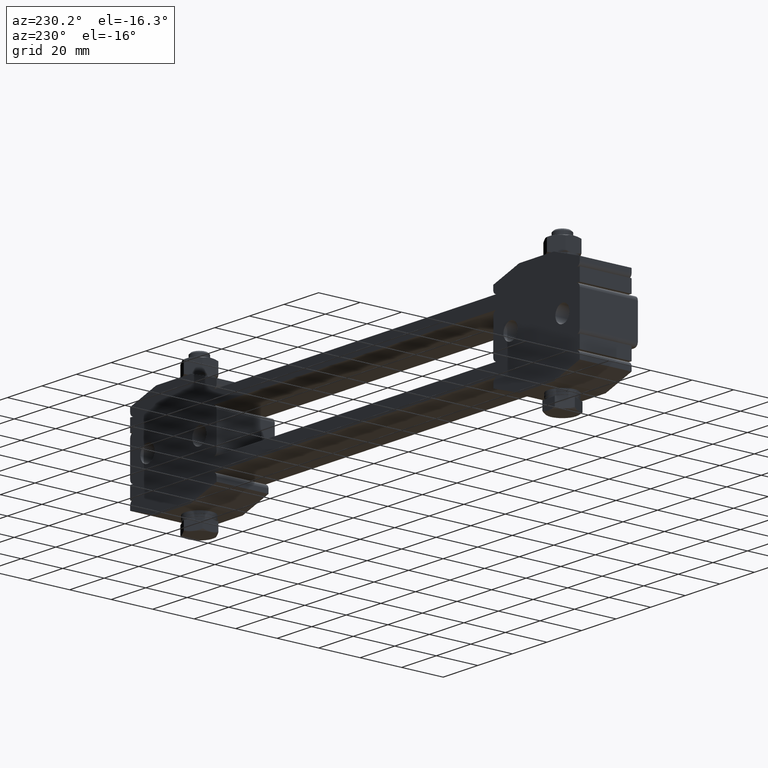
[diagram: clean part render]
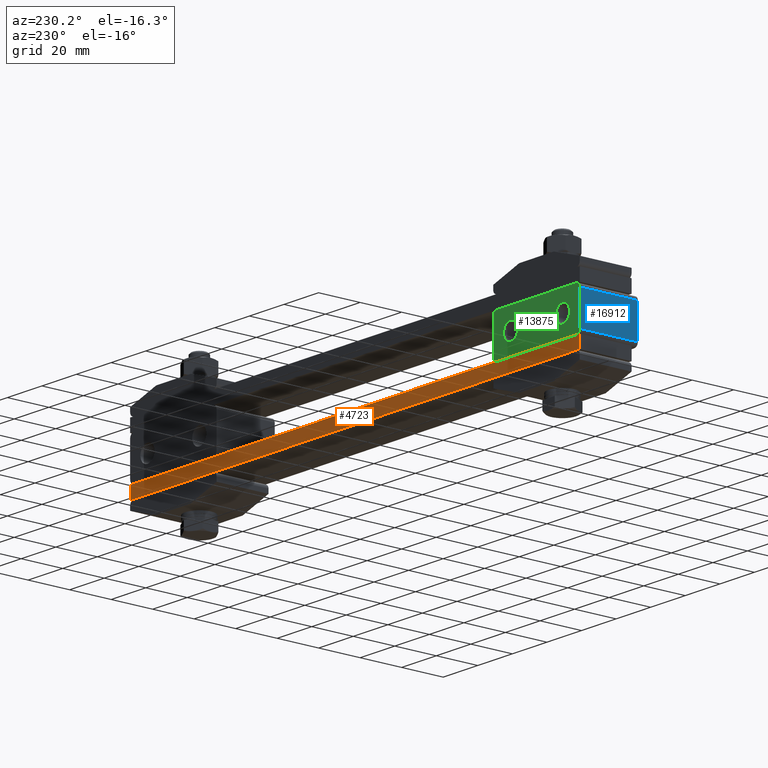
[diagram: same view with three faces highlighted in distinct colors, each labeled with its STEP entity id]
A machine part, auxiliary view with three faces highlighted in distinct colors.
Their STEP definitions:

[orange] entity #4723 — the highlighted planar face has unit normal (-0, -1, 0).
#538 = VECTOR ( 'NONE', #7116, 1000.000000000000000 ) ;
#637 = VERTEX_POINT ( 'NONE', #16670 ) ;
#789 = ORIENTED_EDGE ( 'NONE', *, *, #10513, .T. ) ;
#843 = ORIENTED_EDGE ( 'NONE', *, *, #4852, .F. ) ;
#1203 = VECTOR ( 'NONE', #12789, 1000.000000000000000 ) ;
#1219 = DIRECTION ( 'NONE',  ( -1.000000000000000000, 6.004812032227410000E-017, 0.0000000000000000000 ) ) ;
#1308 = CARTESIAN_POINT ( 'NONE',  ( 130.0000000000000000, 12.50000000000000000, 6.000000000000000000 ) ) ;
#1892 = EDGE_CURVE ( 'NONE', #637, #6761, #4321, .T. ) ;
#2294 = FACE_OUTER_BOUND ( 'NONE', #5741, .T. ) ;
#2340 = DIRECTION ( 'NONE',  ( 0.0000000000000000000, 0.0000000000000000000, -1.000000000000000000 ) ) ;
#3088 = LINE ( 'NONE', #3976, #538 ) ;
#3811 = VECTOR ( 'NONE', #1219, 1000.000000000000000 ) ;
#3976 = CARTESIAN_POINT ( 'NONE',  ( -130.0000000000000000, 12.50000000000000000, 0.0000000000000000000 ) ) ;
#4321 = LINE ( 'NONE', #5496, #9936 ) ;
#4723 = ADVANCED_FACE ( 'NONE', ( #2294 ), #13874, .F. ) ;
#4823 = ORIENTED_EDGE ( 'NONE', *, *, #1892, .F. ) ;
#4852 = EDGE_CURVE ( 'NONE', #10439, #637, #10489, .T. ) ;
#5496 = CARTESIAN_POINT ( 'NONE',  ( -130.0000000000000000, 12.50000000000000000, 6.000000000000000000 ) ) ;
#5679 = DIRECTION ( 'NONE',  ( -6.004812032227410000E-017, -1.000000000000000000, 0.0000000000000000000 ) ) ;
#5741 = EDGE_LOOP ( 'NONE', ( #789, #4823, #843, #10390 ) ) ;
#6101 = CARTESIAN_POINT ( 'NONE',  ( -130.0000000000000000, 12.50000000000000000, 6.000000000000000000 ) ) ;
#6761 = VERTEX_POINT ( 'NONE', #19327 ) ;
#7116 = DIRECTION ( 'NONE',  ( -1.000000000000000000, 6.004812032227410000E-017, 0.0000000000000000000 ) ) ;
#7349 = CARTESIAN_POINT ( 'NONE',  ( 130.0000000000000000, 12.50000000000000000, 0.0000000000000000000 ) ) ;
#8901 = CARTESIAN_POINT ( 'NONE',  ( -130.0000000000000000, 12.50000000000000000, 6.000000000000000000 ) ) ;
#9936 = VECTOR ( 'NONE', #2340, 1000.000000000000000 ) ;
#10390 = ORIENTED_EDGE ( 'NONE', *, *, #17536, .T. ) ;
#10439 = VERTEX_POINT ( 'NONE', #15384 ) ;
#10489 = LINE ( 'NONE', #6101, #3811 ) ;
#10513 = EDGE_CURVE ( 'NONE', #18773, #6761, #3088, .T. ) ;
#12789 = DIRECTION ( 'NONE',  ( 0.0000000000000000000, 0.0000000000000000000, -1.000000000000000000 ) ) ;
#13874 = PLANE ( 'NONE',  #17646 ) ;
#14030 = DIRECTION ( 'NONE',  ( 1.000000000000000000, -6.004812032227410000E-017, 0.0000000000000000000 ) ) ;
#14836 = LINE ( 'NONE', #1308, #1203 ) ;
#15384 = CARTESIAN_POINT ( 'NONE',  ( 130.0000000000000000, 12.50000000000000000, 6.000000000000000000 ) ) ;
#16670 = CARTESIAN_POINT ( 'NONE',  ( -130.0000000000000000, 12.50000000000000000, 6.000000000000000000 ) ) ;
#17536 = EDGE_CURVE ( 'NONE', #10439, #18773, #14836, .T. ) ;
#17646 = AXIS2_PLACEMENT_3D ( 'NONE', #8901, #5679, #14030 ) ;
#18773 = VERTEX_POINT ( 'NONE', #7349 ) ;
#19327 = CARTESIAN_POINT ( 'NONE',  ( -130.0000000000000000, 12.50000000000000000, 0.0000000000000000000 ) ) ;

[blue] entity #16912 — the highlighted planar face has unit normal (1, -0, 0).
#84 = DIRECTION ( 'NONE',  ( 0.0000000000000000000, 0.0000000000000000000, 1.000000000000000000 ) ) ;
#1519 = VERTEX_POINT ( 'NONE', #13115 ) ;
#2542 = FACE_OUTER_BOUND ( 'NONE', #12724, .T. ) ;
#2567 = VECTOR ( 'NONE', #6177, 1000.000000000000000 ) ;
#2810 = CARTESIAN_POINT ( 'NONE',  ( -130.0000000000000000, -15.50000000000000000, 8.000000000000000000 ) ) ;
#2888 = CARTESIAN_POINT ( 'NONE',  ( -130.0000000000000000, 12.50000000000000000, 24.00000000000000000 ) ) ;
#2986 = LINE ( 'NONE', #5351, #15336 ) ;
#3140 = LINE ( 'NONE', #7477, #4927 ) ;
#3872 = VERTEX_POINT ( 'NONE', #2810 ) ;
#3881 = EDGE_CURVE ( 'NONE', #1519, #6410, #13074, .T. ) ;
#4000 = CARTESIAN_POINT ( 'NONE',  ( -130.0000000000000000, 12.50000000000000000, 8.000000000000000000 ) ) ;
#4080 = PLANE ( 'NONE',  #18453 ) ;
#4124 = ORIENTED_EDGE ( 'NONE', *, *, #5983, .T. ) ;
#4305 = ORIENTED_EDGE ( 'NONE', *, *, #10737, .F. ) ;
#4927 = VECTOR ( 'NONE', #19276, 1000.000000000000000 ) ;
#5351 = CARTESIAN_POINT ( 'NONE',  ( -130.0000000000000000, -15.50000000000000000, 8.000000000000000000 ) ) ;
#5983 = EDGE_CURVE ( 'NONE', #6127, #3872, #2986, .T. ) ;
#6127 = VERTEX_POINT ( 'NONE', #4000 ) ;
#6177 = DIRECTION ( 'NONE',  ( -7.771561172376090900E-016, 1.000000000000000000, 0.0000000000000000000 ) ) ;
#6410 = VERTEX_POINT ( 'NONE', #14950 ) ;
#7477 = CARTESIAN_POINT ( 'NONE',  ( -130.0000000000000000, -15.50000000000000000, 6.000000000000000000 ) ) ;
#10737 = EDGE_CURVE ( 'NONE', #6127, #6410, #11817, .T. ) ;
#11817 = LINE ( 'NONE', #19101, #15150 ) ;
#12258 = DIRECTION ( 'NONE',  ( 0.0000000000000000000, 0.0000000000000000000, -1.000000000000000000 ) ) ;
#12724 = EDGE_LOOP ( 'NONE', ( #14199, #13533, #4305, #4124 ) ) ;
#13074 = LINE ( 'NONE', #2888, #2567 ) ;
#13115 = CARTESIAN_POINT ( 'NONE',  ( -130.0000000000000000, -15.50000000000000000, 24.00000000000000000 ) ) ;
#13533 = ORIENTED_EDGE ( 'NONE', *, *, #3881, .T. ) ;
#14199 = ORIENTED_EDGE ( 'NONE', *, *, #15487, .T. ) ;
#14950 = CARTESIAN_POINT ( 'NONE',  ( -130.0000000000000000, 12.50000000000000000, 24.00000000000000000 ) ) ;
#15150 = VECTOR ( 'NONE', #84, 1000.000000000000000 ) ;
#15336 = VECTOR ( 'NONE', #18406, 1000.000000000000000 ) ;
#15487 = EDGE_CURVE ( 'NONE', #3872, #1519, #3140, .T. ) ;
#16912 = ADVANCED_FACE ( 'NONE', ( #2542 ), #4080, .F. ) ;
#18406 = DIRECTION ( 'NONE',  ( 7.771561172376090900E-016, -1.000000000000000000, -0.0000000000000000000 ) ) ;
#18453 = AXIS2_PLACEMENT_3D ( 'NONE', #20546, #20614, #12258 ) ;
#19101 = CARTESIAN_POINT ( 'NONE',  ( -130.0000000000000000, 12.50000000000000000, 6.000000000000000000 ) ) ;
#19276 = DIRECTION ( 'NONE',  ( 0.0000000000000000000, 0.0000000000000000000, 1.000000000000000000 ) ) ;
#20546 = CARTESIAN_POINT ( 'NONE',  ( -130.0000000000000000, 12.50000000000000000, 6.000000000000000000 ) ) ;
#20614 = DIRECTION ( 'NONE',  ( 1.000000000000000000, -1.665334536937729900E-016, 0.0000000000000000000 ) ) ;

[green] entity #13875 — the highlighted planar face has unit normal (0, -1, 0).
#6 = VECTOR ( 'NONE', #18763, 1000.000000000000000 ) ;
#84 = DIRECTION ( 'NONE',  ( 0.0000000000000000000, 0.0000000000000000000, 1.000000000000000000 ) ) ;
#332 = CARTESIAN_POINT ( 'NONE',  ( -80.00000000000000000, 12.50000000000000000, 8.000000000000000000 ) ) ;
#557 = AXIS2_PLACEMENT_3D ( 'NONE', #17843, #1421, #14561 ) ;
#1238 = PLANE ( 'NONE',  #7937 ) ;
#1421 = DIRECTION ( 'NONE',  ( -7.771561172376090900E-016, 1.000000000000000000, 0.0000000000000000000 ) ) ;
#1527 = AXIS2_PLACEMENT_3D ( 'NONE', #4425, #19234, #17679 ) ;
#1804 = VECTOR ( 'NONE', #4876, 1000.000000000000000 ) ;
#1928 = ORIENTED_EDGE ( 'NONE', *, *, #4068, .T. ) ;
#2499 = EDGE_CURVE ( 'NONE', #16384, #20816, #16617, .T. ) ;
#2599 = VERTEX_POINT ( 'NONE', #17136 ) ;
#3558 = CARTESIAN_POINT ( 'NONE',  ( -128.0000000000000000, 12.50000000000000000, 8.000000000000000000 ) ) ;
#3658 = CARTESIAN_POINT ( 'NONE',  ( -82.00000000000000000, 12.50000000000000000, 24.00000000000000000 ) ) ;
#3742 = CARTESIAN_POINT ( 'NONE',  ( -80.00000000000000000, 12.50000000000000000, 24.00000000000000000 ) ) ;
#3748 = CARTESIAN_POINT ( 'NONE',  ( -119.9999999999999900, 12.50000000000000000, 20.10000000000000100 ) ) ;
#3766 = DIRECTION ( 'NONE',  ( 0.0000000000000000000, 0.0000000000000000000, 1.000000000000000000 ) ) ;
#4000 = CARTESIAN_POINT ( 'NONE',  ( -130.0000000000000000, 12.50000000000000000, 8.000000000000000000 ) ) ;
#4068 = EDGE_CURVE ( 'NONE', #4711, #16384, #5903, .T. ) ;
#4123 = CARTESIAN_POINT ( 'NONE',  ( -80.00000000000000000, 12.50000000000000000, 26.00000000000000000 ) ) ;
#4239 = AXIS2_PLACEMENT_3D ( 'NONE', #6178, #19277, #4469 ) ;
#4425 = CARTESIAN_POINT ( 'NONE',  ( -120.0000000000000000, 12.50000000000000000, 16.00000000000000000 ) ) ;
#4430 = CIRCLE ( 'NONE', #17078, 4.099999999999999600 ) ;
#4452 = ORIENTED_EDGE ( 'NONE', *, *, #16409, .T. ) ;
#4469 = DIRECTION ( 'NONE',  ( 0.0000000000000000000, 0.0000000000000000000, -1.000000000000000000 ) ) ;
#4490 = VERTEX_POINT ( 'NONE', #16527 ) ;
#4491 = CIRCLE ( 'NONE', #557, 4.099999999999999600 ) ;
#4663 = VERTEX_POINT ( 'NONE', #332 ) ;
#4704 = VERTEX_POINT ( 'NONE', #17160 ) ;
#4711 = VERTEX_POINT ( 'NONE', #15537 ) ;
#4754 = CARTESIAN_POINT ( 'NONE',  ( -90.00000000000000000, 12.50000000000000000, 16.00000000000000000 ) ) ;
#4876 = DIRECTION ( 'NONE',  ( 0.0000000000000000000, 0.0000000000000000000, 1.000000000000000000 ) ) ;
#5584 = ORIENTED_EDGE ( 'NONE', *, *, #16195, .F. ) ;
#5585 = CARTESIAN_POINT ( 'NONE',  ( -90.00000000000000000, 12.50000000000000000, 11.90000000000000000 ) ) ;
#5690 = CIRCLE ( 'NONE', #1527, 4.099999999999999600 ) ;
#5903 = LINE ( 'NONE', #4123, #7448 ) ;
#6127 = VERTEX_POINT ( 'NONE', #4000 ) ;
#6178 = CARTESIAN_POINT ( 'NONE',  ( -90.00000000000000000, 12.50000000000000000, 16.00000000000000000 ) ) ;
#6186 = DIRECTION ( 'NONE',  ( 0.0000000000000000000, 0.0000000000000000000, 1.000000000000000000 ) ) ;
#6229 = CIRCLE ( 'NONE', #4239, 4.099999999999999600 ) ;
#6274 = CIRCLE ( 'NONE', #14717, 2.000000000000000000 ) ;
#6410 = VERTEX_POINT ( 'NONE', #14950 ) ;
#6918 = EDGE_CURVE ( 'NONE', #4704, #17683, #4491, .T. ) ;
#6938 = DIRECTION ( 'NONE',  ( -7.771561172376090900E-016, 1.000000000000000000, -0.0000000000000000000 ) ) ;
#7126 = ORIENTED_EDGE ( 'NONE', *, *, #10737, .T. ) ;
#7300 = CARTESIAN_POINT ( 'NONE',  ( -80.00000000000000000, 12.50000000000000000, 6.000000000000000000 ) ) ;
#7448 = VECTOR ( 'NONE', #15607, 1000.000000000000000 ) ;
#7521 = EDGE_CURVE ( 'NONE', #2599, #6127, #6274, .T. ) ;
#7937 = AXIS2_PLACEMENT_3D ( 'NONE', #16030, #17589, #6186 ) ;
#8379 = EDGE_LOOP ( 'NONE', ( #11843, #19392 ) ) ;
#8613 = EDGE_CURVE ( 'NONE', #8669, #21135, #4430, .T. ) ;
#8669 = VERTEX_POINT ( 'NONE', #14657 ) ;
#9436 = EDGE_CURVE ( 'NONE', #6410, #4711, #12667, .T. ) ;
#9457 = DIRECTION ( 'NONE',  ( 0.0000000000000000000, 0.0000000000000000000, -1.000000000000000000 ) ) ;
#9629 = EDGE_CURVE ( 'NONE', #17683, #4704, #5690, .T. ) ;
#10619 = DIRECTION ( 'NONE',  ( -7.771561172376090900E-016, 1.000000000000000000, -0.0000000000000000000 ) ) ;
#10635 = FACE_BOUND ( 'NONE', #11223, .T. ) ;
#10737 = EDGE_CURVE ( 'NONE', #6127, #6410, #11817, .T. ) ;
#11024 = EDGE_CURVE ( 'NONE', #2599, #4490, #17430, .T. ) ;
#11223 = EDGE_LOOP ( 'NONE', ( #18588, #13183 ) ) ;
#11817 = LINE ( 'NONE', #19101, #15150 ) ;
#11843 = ORIENTED_EDGE ( 'NONE', *, *, #6918, .F. ) ;
#11876 = DIRECTION ( 'NONE',  ( -7.771561172376090900E-016, 1.000000000000000000, -0.0000000000000000000 ) ) ;
#12529 = DIRECTION ( 'NONE',  ( 0.0000000000000000000, 0.0000000000000000000, 1.000000000000000000 ) ) ;
#12667 = CIRCLE ( 'NONE', #18444, 2.000000000000001800 ) ;
#12861 = EDGE_LOOP ( 'NONE', ( #7126, #13301, #1928, #14573, #5584, #4452, #16552, #19655 ) ) ;
#13183 = ORIENTED_EDGE ( 'NONE', *, *, #8613, .F. ) ;
#13301 = ORIENTED_EDGE ( 'NONE', *, *, #9436, .T. ) ;
#13565 = DIRECTION ( 'NONE',  ( 0.0000000000000000000, 0.0000000000000000000, 1.000000000000000000 ) ) ;
#13875 = ADVANCED_FACE ( 'NONE', ( #10635, #19583, #15784 ), #1238, .F. ) ;
#14561 = DIRECTION ( 'NONE',  ( 0.0000000000000000000, 0.0000000000000000000, -1.000000000000000000 ) ) ;
#14573 = ORIENTED_EDGE ( 'NONE', *, *, #2499, .T. ) ;
#14657 = CARTESIAN_POINT ( 'NONE',  ( -89.99999999999998600, 12.50000000000000000, 20.10000000000000100 ) ) ;
#14717 = AXIS2_PLACEMENT_3D ( 'NONE', #3558, #11876, #3766 ) ;
#14950 = CARTESIAN_POINT ( 'NONE',  ( -130.0000000000000000, 12.50000000000000000, 24.00000000000000000 ) ) ;
#15150 = VECTOR ( 'NONE', #84, 1000.000000000000000 ) ;
#15303 = AXIS2_PLACEMENT_3D ( 'NONE', #18798, #10619, #20370 ) ;
#15431 = CIRCLE ( 'NONE', #15303, 2.000000000000000000 ) ;
#15537 = CARTESIAN_POINT ( 'NONE',  ( -128.0000000000000000, 12.50000000000000000, 26.00000000000000000 ) ) ;
#15607 = DIRECTION ( 'NONE',  ( 1.000000000000000000, -1.665334536937729900E-016, 0.0000000000000000000 ) ) ;
#15784 = FACE_OUTER_BOUND ( 'NONE', #12861, .T. ) ;
#16030 = CARTESIAN_POINT ( 'NONE',  ( -80.00000000000000000, 12.50000000000000000, 6.000000000000000000 ) ) ;
#16195 = EDGE_CURVE ( 'NONE', #4663, #20816, #20001, .T. ) ;
#16384 = VERTEX_POINT ( 'NONE', #18725 ) ;
#16409 = EDGE_CURVE ( 'NONE', #4663, #4490, #15431, .T. ) ;
#16527 = CARTESIAN_POINT ( 'NONE',  ( -82.00000000000000000, 12.50000000000000000, 6.000000000000000000 ) ) ;
#16552 = ORIENTED_EDGE ( 'NONE', *, *, #11024, .F. ) ;
#16617 = CIRCLE ( 'NONE', #19382, 2.000000000000001800 ) ;
#17078 = AXIS2_PLACEMENT_3D ( 'NONE', #4754, #19496, #9457 ) ;
#17136 = CARTESIAN_POINT ( 'NONE',  ( -128.0000000000000000, 12.50000000000000000, 6.000000000000000000 ) ) ;
#17160 = CARTESIAN_POINT ( 'NONE',  ( -120.0000000000000000, 12.50000000000000000, 11.90000000000000000 ) ) ;
#17430 = LINE ( 'NONE', #7300, #6 ) ;
#17589 = DIRECTION ( 'NONE',  ( 7.771561172376090900E-016, -1.000000000000000000, 0.0000000000000000000 ) ) ;
#17679 = DIRECTION ( 'NONE',  ( 0.0000000000000000000, 0.0000000000000000000, -1.000000000000000000 ) ) ;
#17683 = VERTEX_POINT ( 'NONE', #3748 ) ;
#17843 = CARTESIAN_POINT ( 'NONE',  ( -120.0000000000000000, 12.50000000000000000, 16.00000000000000000 ) ) ;
#18091 = CARTESIAN_POINT ( 'NONE',  ( -80.00000000000000000, 12.50000000000000000, 6.000000000000000000 ) ) ;
#18444 = AXIS2_PLACEMENT_3D ( 'NONE', #20129, #6938, #12529 ) ;
#18588 = ORIENTED_EDGE ( 'NONE', *, *, #20571, .F. ) ;
#18725 = CARTESIAN_POINT ( 'NONE',  ( -82.00000000000000000, 12.50000000000000000, 26.00000000000000000 ) ) ;
#18763 = DIRECTION ( 'NONE',  ( 1.000000000000000000, -1.665334536937729900E-016, 0.0000000000000000000 ) ) ;
#18798 = CARTESIAN_POINT ( 'NONE',  ( -82.00000000000000000, 12.50000000000000000, 8.000000000000000000 ) ) ;
#19101 = CARTESIAN_POINT ( 'NONE',  ( -130.0000000000000000, 12.50000000000000000, 6.000000000000000000 ) ) ;
#19234 = DIRECTION ( 'NONE',  ( -7.771561172376090900E-016, 1.000000000000000000, 0.0000000000000000000 ) ) ;
#19277 = DIRECTION ( 'NONE',  ( -7.771561172376090900E-016, 1.000000000000000000, 0.0000000000000000000 ) ) ;
#19382 = AXIS2_PLACEMENT_3D ( 'NONE', #3658, #20274, #13565 ) ;
#19392 = ORIENTED_EDGE ( 'NONE', *, *, #9629, .F. ) ;
#19496 = DIRECTION ( 'NONE',  ( -7.771561172376090900E-016, 1.000000000000000000, 0.0000000000000000000 ) ) ;
#19583 = FACE_BOUND ( 'NONE', #8379, .T. ) ;
#19655 = ORIENTED_EDGE ( 'NONE', *, *, #7521, .T. ) ;
#20001 = LINE ( 'NONE', #18091, #1804 ) ;
#20129 = CARTESIAN_POINT ( 'NONE',  ( -128.0000000000000000, 12.50000000000000000, 24.00000000000000000 ) ) ;
#20274 = DIRECTION ( 'NONE',  ( -7.771561172376090900E-016, 1.000000000000000000, -0.0000000000000000000 ) ) ;
#20370 = DIRECTION ( 'NONE',  ( 0.0000000000000000000, 0.0000000000000000000, 1.000000000000000000 ) ) ;
#20571 = EDGE_CURVE ( 'NONE', #21135, #8669, #6229, .T. ) ;
#20816 = VERTEX_POINT ( 'NONE', #3742 ) ;
#21135 = VERTEX_POINT ( 'NONE', #5585 ) ;